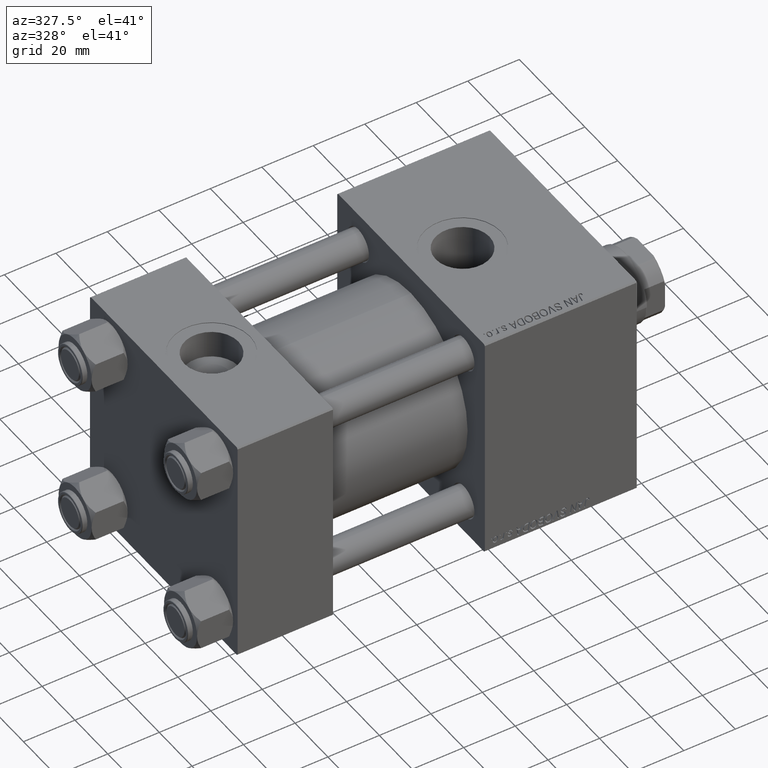
[diagram: clean part render]
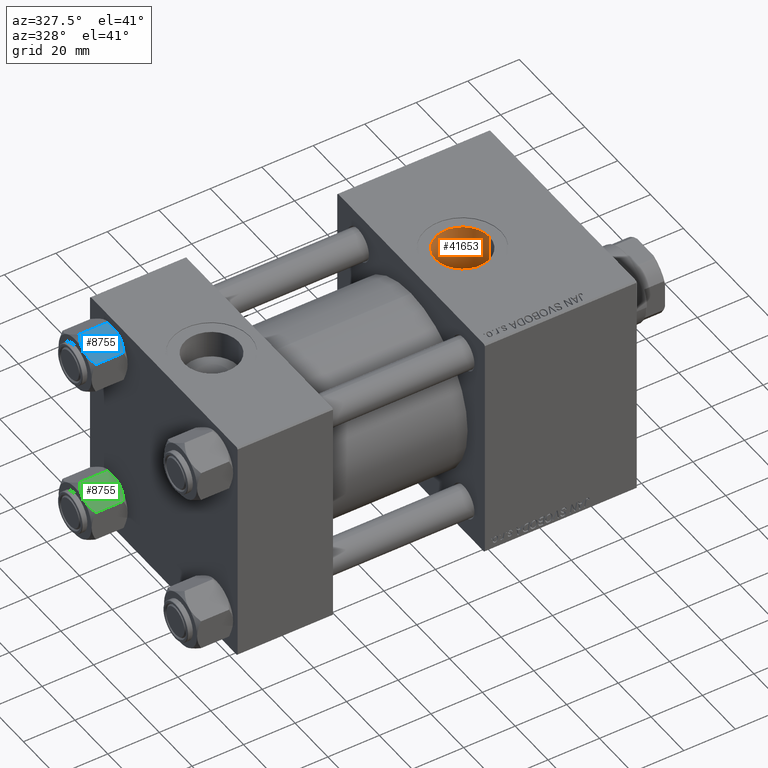
[diagram: same view with three faces highlighted in distinct colors, each labeled with its STEP entity id]
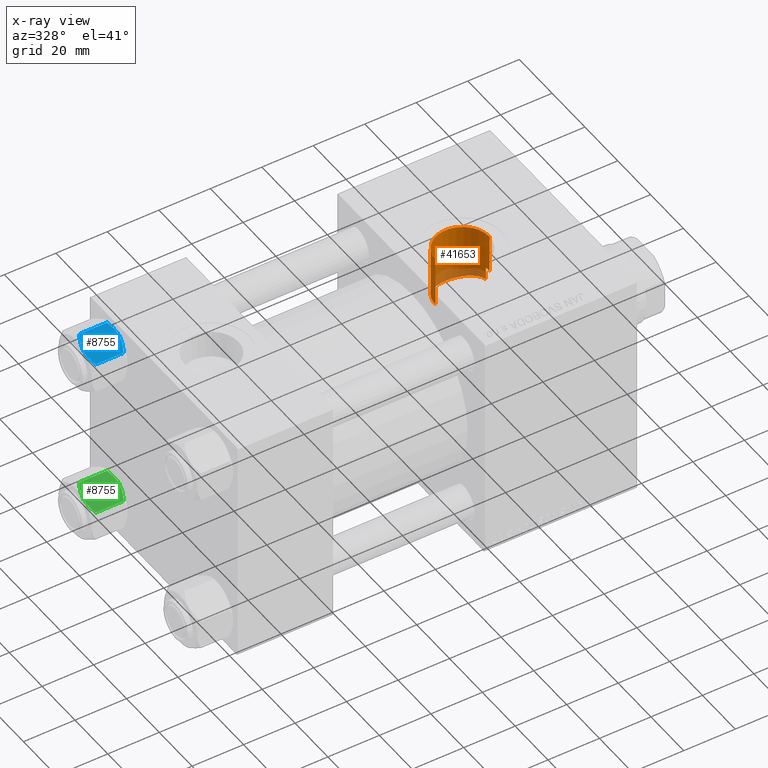
[diagram: x-ray of the same camera — body ghosted, the three highlighted faces saturated]
A machine part, auxiliary view with three faces highlighted in distinct colors.
The next image is the same camera in x-ray (body ghosted, the three faces saturated) — at least one of them is partly hidden behind the body in this view.
Their STEP definitions:

[orange] entity #41653 — the highlighted cylindrical surface (edge-blend (fillet) strip) has radius 10.48 mm, axis along (0, 0, -1).
#37 = CARTESIAN_POINT ( 'NONE',  ( 125.6493108754359298, 4.101772300320491560, 24.66307610818221718 ) ) ;
#168 = EDGE_CURVE ( 'NONE', #49647, #38206, #34773, .T. ) ;
#276 = CARTESIAN_POINT ( 'NONE',  ( 113.7430657101277376, 10.23927097569745648, 22.80705355501167020 ) ) ;
#533 = CARTESIAN_POINT ( 'NONE',  ( 110.2019733445123819, 8.735928194877923048, 23.42469629605734127 ) ) ;
#634 = EDGE_CURVE ( 'NONE', #18854, #1360, #39794, .T. ) ;
#752 = EDGE_CURVE ( 'NONE', #38206, #6247, #3035, .T. ) ;
#789 = CARTESIAN_POINT ( 'NONE',  ( 106.0178759252195277, 3.208328409761893596, 24.79527483265623644 ) ) ;
#1035 = CARTESIAN_POINT ( 'NONE',  ( 120.4188195642436199, 9.508309770353220003, 23.12177175093559001 ) ) ;
#1360 = VERTEX_POINT ( 'NONE', #16520 ) ;
#2262 = DIRECTION ( 'NONE',  ( -0.000000000000000000, -0.000000000000000000, -1.000000000000000000 ) ) ;
#2770 = DIRECTION ( 'NONE',  ( 1.000000000000000000, 0.000000000000000000, 0.000000000000000000 ) ) ;
#3002 = VECTOR ( 'NONE', #34128, 1000.000000000000000 ) ;
#3035 = LINE ( 'NONE', #48986, #46129 ) ;
#3840 = CARTESIAN_POINT ( 'NONE',  ( 122.8367452354718239, 7.949336738018656590, 23.70358087546936332 ) ) ;
#3941 = LINE ( 'NONE', #34410, #44186 ) ;
#4098 = CARTESIAN_POINT ( 'NONE',  ( 107.4454009048542815, 6.087710720132601061, 24.25388776972977567 ) ) ;
#4539 = DIRECTION ( 'NONE',  ( -1.000000000000000000, 0.000000000000000000, 0.000000000000000000 ) ) ;
#6247 = VERTEX_POINT ( 'NONE', #27871 ) ;
#6602 = ORIENTED_EDGE ( 'NONE', *, *, #168, .F. ) ;
#7644 = CARTESIAN_POINT ( 'NONE',  ( 120.1216041761687165, 9.640975358095740688, 23.06660230998516070 ) ) ;
#7896 = CARTESIAN_POINT ( 'NONE',  ( 125.0727601258625157, 5.255426041479307919, 24.44298397004090262 ) ) ;
#8155 = CARTESIAN_POINT ( 'NONE',  ( 125.5190933919545273, 4.395560038025625893, 24.61229465162431040 ) ) ;
#8346 = CYLINDRICAL_SURFACE ( 'NONE', #19235, 10.48000000000000398 ) ;
#8398 = CARTESIAN_POINT ( 'NONE',  ( 105.8381471228398283, 2.583199243602494199, 24.86817457876016491 ) ) ;
#8646 = CARTESIAN_POINT ( 'NONE',  ( 105.5200000000000102, 0.3287850015386533653, 25.00000000000001066 ) ) ;
#11457 = CARTESIAN_POINT ( 'NONE',  ( 109.9349178649771375, 8.552642181762106333, 23.49243050560861690 ) ) ;
#11648 = DIRECTION ( 'NONE',  ( 0.000000000000000000, 0.000000000000000000, -1.000000000000000000 ) ) ;
#11705 = CARTESIAN_POINT ( 'NONE',  ( 113.4226261123151716, 10.16335071941091073, 22.84110205403496252 ) ) ;
#11956 = CARTESIAN_POINT ( 'NONE',  ( 123.3095492883835362, 7.516882943737513756, 23.84424818912263078 ) ) ;
#13908 = ORIENTED_EDGE ( 'NONE', *, *, #32766, .T. ) ;
#13989 = CARTESIAN_POINT ( 'NONE',  ( 105.5199999999999960, 3.061768933645607322E-15, 25.00000000000000000 ) ) ;
#15513 = CARTESIAN_POINT ( 'NONE',  ( 125.9991942442599822, 3.203101616166324828, 24.80136239248102825 ) ) ;
#15759 = CARTESIAN_POINT ( 'NONE',  ( 121.2812565894447232, 9.074845065222547191, 23.29687364020410811 ) ) ;
#16008 = CARTESIAN_POINT ( 'NONE',  ( 106.1232496530287648, 3.519319470400923411, 24.75293856241372836 ) ) ;
#16230 = CARTESIAN_POINT ( 'NONE',  ( 126.4800000000000040, 0.6446704584514654224, 30.00000000000000000 ) ) ;
#16264 = CARTESIAN_POINT ( 'NONE',  ( 117.6386177692833286, 10.37204485282558331, 22.74698456315752182 ) ) ;
#16520 = CARTESIAN_POINT ( 'NONE',  ( 126.2999999999999972, 1.934011375354389939, 24.92507973909010488 ) ) ;
#18011 = DIRECTION ( 'NONE',  ( 0.000000000000000000, 0.000000000000000000, -1.000000000000000000 ) ) ;
#18523 = ORIENTED_EDGE ( 'NONE', *, *, #39733, .T. ) ;
#18825 = ORIENTED_EDGE ( 'NONE', *, *, #634, .T. ) ;
#18854 = VERTEX_POINT ( 'NONE', #13989 ) ;
#19043 = CARTESIAN_POINT ( 'NONE',  ( 126.4800000000000040, 3.352779466116923030E-15, 30.00000000000000000 ) ) ;
#19145 = CARTESIAN_POINT ( 'NONE',  ( 126.2999999999999972, 1.934011375354389939, 67.79999999999999716 ) ) ;
#19235 = AXIS2_PLACEMENT_3D ( 'NONE', #23831, #11648, #4539 ) ;
#19331 = CARTESIAN_POINT ( 'NONE',  ( 123.5346559080208522, 7.291128265817105714, 23.91442154817949728 ) ) ;
#19579 = CARTESIAN_POINT ( 'NONE',  ( 112.4831019260238776, 9.893757827435578633, 22.95979354450773968 ) ) ;
#19825 = CARTESIAN_POINT ( 'NONE',  ( 105.5199999999999960, 3.061768933645607322E-15, 25.00000000000000000 ) ) ;
#20083 = CARTESIAN_POINT ( 'NONE',  ( 105.7631178406935675, 2.267565399210858423, 24.89900277306706755 ) ) ;
#20329 = CARTESIAN_POINT ( 'NONE',  ( 111.0272351189628068, 9.230614084050129620, 23.23401715973118087 ) ) ;
#20963 = ORIENTED_EDGE ( 'NONE', *, *, #752, .F. ) ;
#23135 = CARTESIAN_POINT ( 'NONE',  ( 105.5356230239824953, 0.6585730766822409654, 24.99343936272600430 ) ) ;
#23381 = CARTESIAN_POINT ( 'NONE',  ( 108.6990350769791149, 7.545365073248964549, 23.83920699503248386 ) ) ;
#23831 = CARTESIAN_POINT ( 'NONE',  ( 116.0000000000000000, -6.938893903907227589E-15, 67.79999999999999716 ) ) ;
#23887 = CARTESIAN_POINT ( 'NONE',  ( 111.8851596875121572, 9.659575400900973108, 23.06052388961923683 ) ) ;
#24140 = CARTESIAN_POINT ( 'NONE',  ( 106.4784251406594962, 4.426244458063012921, 24.61265260054171833 ) ) ;
#25037 = EDGE_CURVE ( 'NONE', #27457, #1360, #34368, .T. ) ;
#25458 = EDGE_LOOP ( 'NONE', ( #20963, #6602, #13908, #18825, #48098, #18523 ) ) ;
#26149 = B_SPLINE_CURVE_WITH_KNOTS ( 'NONE', 3,
 ( #35531, #35020, #16230, #19043 ),
 .UNSPECIFIED., .F., .F.,
 ( 4, 4 ),
 ( 0.000000000000000000, 0.001934011375354386698 ),
 .UNSPECIFIED. ) ;
#26958 = CARTESIAN_POINT ( 'NONE',  ( 114.3830684219185798, 10.35963101535786102, 22.75263517047128303 ) ) ;
#27199 = CARTESIAN_POINT ( 'NONE',  ( 119.2095190560418416, 9.981685871371876573, 22.92107120454307534 ) ) ;
#27452 = CARTESIAN_POINT ( 'NONE',  ( 119.5162921391537054, 9.877839664245765761, 22.96616710619939994 ) ) ;
#27457 = VERTEX_POINT ( 'NONE', #37270 ) ;
#27871 = CARTESIAN_POINT ( 'NONE',  ( 126.4800000000000040, 3.352779466116923030E-15, 30.00000000000000000 ) ) ;
#28526 = CARTESIAN_POINT ( 'NONE',  ( 126.4800000000000040, -5.655464058400802100E-15, 44.79999999999999005 ) ) ;
#30769 = CARTESIAN_POINT ( 'NONE',  ( 106.7671663617161357, 4.999617035179606539, 24.50132901008040065 ) ) ;
#31005 = CARTESIAN_POINT ( 'NONE',  ( 126.2999999999999972, 1.934011375354389939, 24.92507973909010488 ) ) ;
#31256 = CARTESIAN_POINT ( 'NONE',  ( 116.3268763252384161, 10.49559595691618874, 22.69024210216181459 ) ) ;
#31509 = CARTESIAN_POINT ( 'NONE',  ( 124.5621068483242055, 6.077585296273588789, 24.25652138941319436 ) ) ;
#32766 = EDGE_CURVE ( 'NONE', #49647, #18854, #3941, .T. ) ;
#33030 = AXIS2_PLACEMENT_3D ( 'NONE', #37559, #2262, #2770 ) ;
#34128 = DIRECTION ( 'NONE',  ( 0.000000000000000000, 0.000000000000000000, -1.000000000000000000 ) ) ;
#34368 = LINE ( 'NONE', #19145, #3002 ) ;
#34410 = CARTESIAN_POINT ( 'NONE',  ( 105.5199999999999960, -6.938893903907227589E-15, 67.79999999999999716 ) ) ;
#34773 = CIRCLE ( 'NONE', #33030, 10.48000000000000398 ) ;
#34810 = CARTESIAN_POINT ( 'NONE',  ( 125.2312790006573948, 4.971677288869586597, 24.50241663594839991 ) ) ;
#34913 = DIRECTION ( 'NONE',  ( 0.000000000000000000, 0.000000000000000000, -1.000000000000000000 ) ) ;
#35020 = CARTESIAN_POINT ( 'NONE',  ( 126.4210485436893237, 1.289340916902927958, 29.97924172559974210 ) ) ;
#35054 = CARTESIAN_POINT ( 'NONE',  ( 110.7478055748506875, 9.074580334331647791, 23.29559678875702744 ) ) ;
#35314 = CARTESIAN_POINT ( 'NONE',  ( 105.6424818341990459, 1.630161534427958081, 24.94884296524732292 ) ) ;
#35531 = CARTESIAN_POINT ( 'NONE',  ( 126.2999999999999972, 1.934011375354389939, 29.93759509379468753 ) ) ;
#35568 = CARTESIAN_POINT ( 'NONE',  ( 115.6733399539854474, 10.49497315035231182, 22.69052503754342354 ) ) ;
#35813 = CARTESIAN_POINT ( 'NONE',  ( 118.2768204000753371, 10.25012929133886352, 22.80291826729093074 ) ) ;
#37270 = CARTESIAN_POINT ( 'NONE',  ( 126.2999999999999972, 1.934011375354389939, 29.93759509379468753 ) ) ;
#37559 = CARTESIAN_POINT ( 'NONE',  ( 116.0000000000000000, -6.938893903907227589E-15, 44.79999999999999005 ) ) ;
#38206 = VERTEX_POINT ( 'NONE', #28526 ) ;
#38624 = CARTESIAN_POINT ( 'NONE',  ( 122.5884970808938448, 8.156264676250790657, 23.63297485160378031 ) ) ;
#38821 = FACE_OUTER_BOUND ( 'NONE', #25458, .T. ) ;
#38876 = CARTESIAN_POINT ( 'NONE',  ( 109.1687481271819706, 7.973357901501731071, 23.69796365038536834 ) ) ;
#39628 = CARTESIAN_POINT ( 'NONE',  ( 107.8384609629549260, 6.604990798069032110, 24.11668345353552212 ) ) ;
#39733 = EDGE_CURVE ( 'NONE', #27457, #6247, #26149, .T. ) ;
#39794 = B_SPLINE_CURVE_WITH_KNOTS ( 'NONE', 3,
 ( #19825, #8646, #23135, #46249, #35314, #20083, #8398, #789, #16008, #24140, #30769, #4098, #39628, #23381, #38876, #11457, #533, #35054, #20329, #23887, #19579, #11705, #276, #26958, #42425, #35568, #31256, #16264, #35813, #27199, #27452, #7644, #1035, #15759, #46736, #38624, #3840, #11956, #19331, #42924, #31509, #7896, #34810, #8155, #37, #15513, #46993, #31005 ),
 .UNSPECIFIED., .F., .F.,
 ( 4, 2, 2, 2, 2, 2, 2, 2, 2, 2, 2, 2, 2, 2, 2, 2, 2, 2, 2, 2, 2, 2, 2, 4 ),
 ( 0.03121016949216451342, 0.03218464452383351659, 0.03315911955550251977, 0.03413359458717152989, 0.03510806961884053307, 0.03705701968217853248, 0.03900596974551652496, 0.04095491980885451744, 0.04192939484052350674, 0.04290386987219248216, 0.04485281993553048852, 0.04582729496719946394, 0.04680176999886843936, 0.04875072006220640408, 0.05069967012554435493, 0.05167414515721335810, 0.05264862018888236128, 0.05459757025222039539, 0.05557204528388942633, 0.05654652031555845726, 0.05849547037889651913, 0.05946994541056553618, 0.06044442044223456711, 0.06239337050557263592 ),
 .UNSPECIFIED. ) ;
#41653 = ADVANCED_FACE ( 'NONE', ( #38821 ), #8346, .F. ) ;
#42425 = CARTESIAN_POINT ( 'NONE',  ( 114.7045387977235436, 10.40468030871039318, 22.73199781475518222 ) ) ;
#42924 = CARTESIAN_POINT ( 'NONE',  ( 124.1771732855569894, 6.585514499373144481, 24.12201144741169401 ) ) ;
#44186 = VECTOR ( 'NONE', #34913, 1000.000000000000000 ) ;
#46129 = VECTOR ( 'NONE', #18011, 1000.000000000000000 ) ;
#46249 = CARTESIAN_POINT ( 'NONE',  ( 105.5968747370656189, 1.308391668130473473, 24.96785615383025814 ) ) ;
#46736 = CARTESIAN_POINT ( 'NONE',  ( 121.8230811921165895, 8.736836638396551891, 23.42725551097151637 ) ) ;
#46993 = CARTESIAN_POINT ( 'NONE',  ( 126.1785022418928435, 2.581074223304206772, 24.87487220027363222 ) ) ;
#48098 = ORIENTED_EDGE ( 'NONE', *, *, #25037, .F. ) ;
#48862 = CARTESIAN_POINT ( 'NONE',  ( 105.5199999999999960, -6.938893903907227589E-15, 44.79999999999999005 ) ) ;
#48986 = CARTESIAN_POINT ( 'NONE',  ( 126.4800000000000040, -5.655464058400801311E-15, 67.79999999999999716 ) ) ;
#49647 = VERTEX_POINT ( 'NONE', #48862 ) ;

[blue] entity #8755 — the highlighted planar face has unit normal (-0, 0.5, -0.866).
#114 = PLANE ( 'NONE',  #21339 ) ;
#385 = CARTESIAN_POINT ( 'NONE',  ( 8.969430103550385169, -4.590921729663315354, -14.00000000000000533 ) ) ;
#707 = CARTESIAN_POINT ( 'NONE',  ( 5.810000000000000497, -10.06321519197517667, -12.44321519197518633 ) ) ;
#3449 = LINE ( 'NONE', #49916, #39969 ) ;
#4533 = EDGE_CURVE ( 'NONE', #35836, #7476, #32222, .T. ) ;
#5192 = CARTESIAN_POINT ( 'NONE',  ( 9.974696630283194310, -2.849749030213795997, -13.69973261901326289 ) ) ;
#6168 = ORIENTED_EDGE ( 'NONE', *, *, #32736, .F. ) ;
#7254 = CARTESIAN_POINT ( 'NONE',  ( 5.810000000000000497, -10.06321519197517667, -1.556784808024811895 ) ) ;
#7476 = VERTEX_POINT ( 'NONE', #27660 ) ;
#8755 = ADVANCED_FACE ( 'NONE', ( #30352 ), #114, .F. ) ;
#9813 = ORIENTED_EDGE ( 'NONE', *, *, #15186, .F. ) ;
#11058 = CARTESIAN_POINT ( 'NONE',  ( 7.700834831386344170, -6.788193195293096061, -0.1903979688073396681 ) ) ;
#11075 = EDGE_CURVE ( 'NONE', #24837, #46367, #3449, .T. ) ;
#11557 = CARTESIAN_POINT ( 'NONE',  ( 8.460569896449618099, -5.472293462311865753, 3.427848222766236415E-15 ) ) ;
#12172 = CARTESIAN_POINT ( 'NONE',  ( 5.810000000000000497, -10.06321519197517667, -14.00000000000000000 ) ) ;
#13059 = CARTESIAN_POINT ( 'NONE',  ( 9.227666995912104042, -4.143642311704127223, -13.96005881939309212 ) ) ;
#15186 = EDGE_CURVE ( 'NONE', #40928, #46367, #40242, .T. ) ;
#15868 = CARTESIAN_POINT ( 'NONE',  ( 11.16445427487471775, -0.7890283410877989567, -12.89876091710046424 ) ) ;
#18165 = ORIENTED_EDGE ( 'NONE', *, *, #33942, .F. ) ;
#18678 = DIRECTION ( 'NONE',  ( -0.8660254037844385966, 0.5000000000000002220, 0.000000000000000000 ) ) ;
#20481 = CARTESIAN_POINT ( 'NONE',  ( 11.62000000000000099, -1.924525737834042474E-15, -1.556784808024813893 ) ) ;
#21339 = AXIS2_PLACEMENT_3D ( 'NONE', #49894, #18678, #22212 ) ;
#22046 = CARTESIAN_POINT ( 'NONE',  ( 9.716999946243698005, -3.296092779912227932, -0.1545239700039822972 ) ) ;
#22212 = DIRECTION ( 'NONE',  ( -0.5000000000000001110, -0.8660254037844384856, 0.000000000000000000 ) ) ;
#22751 = CARTESIAN_POINT ( 'NONE',  ( 7.455303369716807182, -7.213466161761383333, -0.3002673809867365540 ) ) ;
#23437 = EDGE_LOOP ( 'NONE', ( #18165, #39308, #9813, #6168, #24463, #43182 ) ) ;
#24277 = VERTEX_POINT ( 'NONE', #46296 ) ;
#24463 = ORIENTED_EDGE ( 'NONE', *, *, #4533, .F. ) ;
#24492 = CARTESIAN_POINT ( 'NONE',  ( 11.62000000000000099, -1.795242522838921761E-15, -12.44321519197518455 ) ) ;
#24837 = VERTEX_POINT ( 'NONE', #46607 ) ;
#25772 = CARTESIAN_POINT ( 'NONE',  ( 6.733375043383497349, -8.463882702393844326, -13.28854452935655139 ) ) ;
#27376 = CARTESIAN_POINT ( 'NONE',  ( 11.16498164529022574, -0.7881149087337312453, -1.101766453314952487 ) ) ;
#27660 = CARTESIAN_POINT ( 'NONE',  ( 5.810000000000000497, -10.06321519197517667, -1.556784808024811895 ) ) ;
#27668 = DIRECTION ( 'NONE',  ( -0.000000000000000000, -0.000000000000000000, 1.000000000000000000 ) ) ;
#30352 = FACE_OUTER_BOUND ( 'NONE', #23437, .T. ) ;
#30866 = DIRECTION ( 'NONE',  ( -0.000000000000000000, -0.000000000000000000, 1.000000000000000000 ) ) ;
#31369 = CARTESIAN_POINT ( 'NONE',  ( 8.715000000000001634, -5.031607595987590997, -14.00000000000000000 ) ) ;
#32222 = LINE ( 'NONE', #12172, #32622 ) ;
#32622 = VECTOR ( 'NONE', #27668, 1000.000000000000000 ) ;
#32736 = EDGE_CURVE ( 'NONE', #7476, #40928, #33800, .T. ) ;
#33473 = CARTESIAN_POINT ( 'NONE',  ( 8.715000000000003411, -5.031607595987592774, 0.000000000000000000 ) ) ;
#33636 = CARTESIAN_POINT ( 'NONE',  ( 5.810000000000000497, -10.06321519197517667, -12.44321519197518633 ) ) ;
#33800 = B_SPLINE_CURVE_WITH_KNOTS ( 'NONE', 3,
 ( #7254, #42033, #45848, #22751, #11058, #38243, #11557, #38726 ),
 .UNSPECIFIED., .F., .F.,
 ( 4, 2, 2, 4 ),
 ( 2.544312114902182352E-07, 0.003011550106433539056, 0.004517197944044561847, 0.006022845781655586372 ),
 .UNSPECIFIED. ) ;
#33942 = EDGE_CURVE ( 'NONE', #24837, #24277, #35063, .T. ) ;
#33987 = CARTESIAN_POINT ( 'NONE',  ( 9.220295946303432189, -4.156409344131454020, 3.521962994683380021E-15 ) ) ;
#35063 = B_SPLINE_CURVE_WITH_KNOTS ( 'NONE', 3,
 ( #24492, #15868, #39974, #5192, #35165, #13059, #385, #31369 ),
 .UNSPECIFIED., .F., .F.,
 ( 4, 2, 2, 4 ),
 ( 2.544312114905217906E-07, 0.003011550106433539490, 0.004517197944044564449, 0.006022845781655588975 ),
 .UNSPECIFIED. ) ;
#35165 = CARTESIAN_POINT ( 'NONE',  ( 9.729165168613654657, -3.275021996682085490, -13.80960203119266083 ) ) ;
#35836 = VERTEX_POINT ( 'NONE', #707 ) ;
#37541 = CARTESIAN_POINT ( 'NONE',  ( 10.69662495661650503, -1.599332489581334560, -0.7114554706434483844 ) ) ;
#37969 = CARTESIAN_POINT ( 'NONE',  ( 7.713000053756304375, -6.767122412062953174, -13.84547602999601601 ) ) ;
#38243 = CARTESIAN_POINT ( 'NONE',  ( 8.202333004087897450, -5.919572880271052995, -0.03994118060690592109 ) ) ;
#38726 = CARTESIAN_POINT ( 'NONE',  ( 8.715000000000003411, -5.031607595987592774, 0.000000000000000000 ) ) ;
#39308 = ORIENTED_EDGE ( 'NONE', *, *, #11075, .T. ) ;
#39969 = VECTOR ( 'NONE', #30866, 1000.000000000000000 ) ;
#39974 = CARTESIAN_POINT ( 'NONE',  ( 10.69859855102500745, -1.595914123792264050, -13.28585617404753094 ) ) ;
#40242 = B_SPLINE_CURVE_WITH_KNOTS ( 'NONE', 3,
 ( #33473, #33987, #22046, #37541, #27376, #46655 ),
 .UNSPECIFIED., .F., .F.,
 ( 4, 2, 4 ),
 ( 0.006022845781655586372, 0.009013049135303633289, 0.01200325248895168020 ),
 .UNSPECIFIED. ) ;
#40928 = VERTEX_POINT ( 'NONE', #49370 ) ;
#41255 = CARTESIAN_POINT ( 'NONE',  ( 6.265018354709775750, -9.275100283241444643, -12.89823354668504507 ) ) ;
#42033 = CARTESIAN_POINT ( 'NONE',  ( 6.265545725125285514, -9.274186850887382150, -1.101239082899530430 ) ) ;
#42751 = EDGE_CURVE ( 'NONE', #24277, #35836, #44063, .T. ) ;
#43182 = ORIENTED_EDGE ( 'NONE', *, *, #42751, .F. ) ;
#44063 = B_SPLINE_CURVE_WITH_KNOTS ( 'NONE', 3,
 ( #49128, #45051, #37969, #25772, #41255, #33636 ),
 .UNSPECIFIED., .F., .F.,
 ( 4, 2, 4 ),
 ( 0.006022845781655588975, 0.009013049135303635023, 0.01200325248895167674 ),
 .UNSPECIFIED. ) ;
#45051 = CARTESIAN_POINT ( 'NONE',  ( 8.209704053696569304, -5.906805847843729751, -14.00000000000000711 ) ) ;
#45848 = CARTESIAN_POINT ( 'NONE',  ( 6.731401448974991375, -8.467301068182914392, -0.7141438259524641730 ) ) ;
#46296 = CARTESIAN_POINT ( 'NONE',  ( 8.715000000000001634, -5.031607595987590997, -14.00000000000000000 ) ) ;
#46367 = VERTEX_POINT ( 'NONE', #20481 ) ;
#46607 = CARTESIAN_POINT ( 'NONE',  ( 11.62000000000000099, -1.795242522838921761E-15, -12.44321519197518455 ) ) ;
#46655 = CARTESIAN_POINT ( 'NONE',  ( 11.62000000000000099, -1.924525737834042474E-15, -1.556784808024813893 ) ) ;
#49128 = CARTESIAN_POINT ( 'NONE',  ( 8.715000000000001634, -5.031607595987590997, -14.00000000000000000 ) ) ;
#49370 = CARTESIAN_POINT ( 'NONE',  ( 8.715000000000003411, -5.031607595987592774, 0.000000000000000000 ) ) ;
#49894 = CARTESIAN_POINT ( 'NONE',  ( 11.62000000000000099, -1.813166800014576593E-15, -14.00000000000000000 ) ) ;
#49916 = CARTESIAN_POINT ( 'NONE',  ( 11.62000000000000099, -1.813166800014576593E-15, -14.00000000000000000 ) ) ;

[green] entity #8755 — the highlighted planar face has unit normal (-0, 0.5, -0.866).
#114 = PLANE ( 'NONE',  #21339 ) ;
#385 = CARTESIAN_POINT ( 'NONE',  ( 8.969430103550385169, -4.590921729663315354, -14.00000000000000533 ) ) ;
#707 = CARTESIAN_POINT ( 'NONE',  ( 5.810000000000000497, -10.06321519197517667, -12.44321519197518633 ) ) ;
#3449 = LINE ( 'NONE', #49916, #39969 ) ;
#4533 = EDGE_CURVE ( 'NONE', #35836, #7476, #32222, .T. ) ;
#5192 = CARTESIAN_POINT ( 'NONE',  ( 9.974696630283194310, -2.849749030213795997, -13.69973261901326289 ) ) ;
#6168 = ORIENTED_EDGE ( 'NONE', *, *, #32736, .F. ) ;
#7254 = CARTESIAN_POINT ( 'NONE',  ( 5.810000000000000497, -10.06321519197517667, -1.556784808024811895 ) ) ;
#7476 = VERTEX_POINT ( 'NONE', #27660 ) ;
#8755 = ADVANCED_FACE ( 'NONE', ( #30352 ), #114, .F. ) ;
#9813 = ORIENTED_EDGE ( 'NONE', *, *, #15186, .F. ) ;
#11058 = CARTESIAN_POINT ( 'NONE',  ( 7.700834831386344170, -6.788193195293096061, -0.1903979688073396681 ) ) ;
#11075 = EDGE_CURVE ( 'NONE', #24837, #46367, #3449, .T. ) ;
#11557 = CARTESIAN_POINT ( 'NONE',  ( 8.460569896449618099, -5.472293462311865753, 3.427848222766236415E-15 ) ) ;
#12172 = CARTESIAN_POINT ( 'NONE',  ( 5.810000000000000497, -10.06321519197517667, -14.00000000000000000 ) ) ;
#13059 = CARTESIAN_POINT ( 'NONE',  ( 9.227666995912104042, -4.143642311704127223, -13.96005881939309212 ) ) ;
#15186 = EDGE_CURVE ( 'NONE', #40928, #46367, #40242, .T. ) ;
#15868 = CARTESIAN_POINT ( 'NONE',  ( 11.16445427487471775, -0.7890283410877989567, -12.89876091710046424 ) ) ;
#18165 = ORIENTED_EDGE ( 'NONE', *, *, #33942, .F. ) ;
#18678 = DIRECTION ( 'NONE',  ( -0.8660254037844385966, 0.5000000000000002220, 0.000000000000000000 ) ) ;
#20481 = CARTESIAN_POINT ( 'NONE',  ( 11.62000000000000099, -1.924525737834042474E-15, -1.556784808024813893 ) ) ;
#21339 = AXIS2_PLACEMENT_3D ( 'NONE', #49894, #18678, #22212 ) ;
#22046 = CARTESIAN_POINT ( 'NONE',  ( 9.716999946243698005, -3.296092779912227932, -0.1545239700039822972 ) ) ;
#22212 = DIRECTION ( 'NONE',  ( -0.5000000000000001110, -0.8660254037844384856, 0.000000000000000000 ) ) ;
#22751 = CARTESIAN_POINT ( 'NONE',  ( 7.455303369716807182, -7.213466161761383333, -0.3002673809867365540 ) ) ;
#23437 = EDGE_LOOP ( 'NONE', ( #18165, #39308, #9813, #6168, #24463, #43182 ) ) ;
#24277 = VERTEX_POINT ( 'NONE', #46296 ) ;
#24463 = ORIENTED_EDGE ( 'NONE', *, *, #4533, .F. ) ;
#24492 = CARTESIAN_POINT ( 'NONE',  ( 11.62000000000000099, -1.795242522838921761E-15, -12.44321519197518455 ) ) ;
#24837 = VERTEX_POINT ( 'NONE', #46607 ) ;
#25772 = CARTESIAN_POINT ( 'NONE',  ( 6.733375043383497349, -8.463882702393844326, -13.28854452935655139 ) ) ;
#27376 = CARTESIAN_POINT ( 'NONE',  ( 11.16498164529022574, -0.7881149087337312453, -1.101766453314952487 ) ) ;
#27660 = CARTESIAN_POINT ( 'NONE',  ( 5.810000000000000497, -10.06321519197517667, -1.556784808024811895 ) ) ;
#27668 = DIRECTION ( 'NONE',  ( -0.000000000000000000, -0.000000000000000000, 1.000000000000000000 ) ) ;
#30352 = FACE_OUTER_BOUND ( 'NONE', #23437, .T. ) ;
#30866 = DIRECTION ( 'NONE',  ( -0.000000000000000000, -0.000000000000000000, 1.000000000000000000 ) ) ;
#31369 = CARTESIAN_POINT ( 'NONE',  ( 8.715000000000001634, -5.031607595987590997, -14.00000000000000000 ) ) ;
#32222 = LINE ( 'NONE', #12172, #32622 ) ;
#32622 = VECTOR ( 'NONE', #27668, 1000.000000000000000 ) ;
#32736 = EDGE_CURVE ( 'NONE', #7476, #40928, #33800, .T. ) ;
#33473 = CARTESIAN_POINT ( 'NONE',  ( 8.715000000000003411, -5.031607595987592774, 0.000000000000000000 ) ) ;
#33636 = CARTESIAN_POINT ( 'NONE',  ( 5.810000000000000497, -10.06321519197517667, -12.44321519197518633 ) ) ;
#33800 = B_SPLINE_CURVE_WITH_KNOTS ( 'NONE', 3,
 ( #7254, #42033, #45848, #22751, #11058, #38243, #11557, #38726 ),
 .UNSPECIFIED., .F., .F.,
 ( 4, 2, 2, 4 ),
 ( 2.544312114902182352E-07, 0.003011550106433539056, 0.004517197944044561847, 0.006022845781655586372 ),
 .UNSPECIFIED. ) ;
#33942 = EDGE_CURVE ( 'NONE', #24837, #24277, #35063, .T. ) ;
#33987 = CARTESIAN_POINT ( 'NONE',  ( 9.220295946303432189, -4.156409344131454020, 3.521962994683380021E-15 ) ) ;
#35063 = B_SPLINE_CURVE_WITH_KNOTS ( 'NONE', 3,
 ( #24492, #15868, #39974, #5192, #35165, #13059, #385, #31369 ),
 .UNSPECIFIED., .F., .F.,
 ( 4, 2, 2, 4 ),
 ( 2.544312114905217906E-07, 0.003011550106433539490, 0.004517197944044564449, 0.006022845781655588975 ),
 .UNSPECIFIED. ) ;
#35165 = CARTESIAN_POINT ( 'NONE',  ( 9.729165168613654657, -3.275021996682085490, -13.80960203119266083 ) ) ;
#35836 = VERTEX_POINT ( 'NONE', #707 ) ;
#37541 = CARTESIAN_POINT ( 'NONE',  ( 10.69662495661650503, -1.599332489581334560, -0.7114554706434483844 ) ) ;
#37969 = CARTESIAN_POINT ( 'NONE',  ( 7.713000053756304375, -6.767122412062953174, -13.84547602999601601 ) ) ;
#38243 = CARTESIAN_POINT ( 'NONE',  ( 8.202333004087897450, -5.919572880271052995, -0.03994118060690592109 ) ) ;
#38726 = CARTESIAN_POINT ( 'NONE',  ( 8.715000000000003411, -5.031607595987592774, 0.000000000000000000 ) ) ;
#39308 = ORIENTED_EDGE ( 'NONE', *, *, #11075, .T. ) ;
#39969 = VECTOR ( 'NONE', #30866, 1000.000000000000000 ) ;
#39974 = CARTESIAN_POINT ( 'NONE',  ( 10.69859855102500745, -1.595914123792264050, -13.28585617404753094 ) ) ;
#40242 = B_SPLINE_CURVE_WITH_KNOTS ( 'NONE', 3,
 ( #33473, #33987, #22046, #37541, #27376, #46655 ),
 .UNSPECIFIED., .F., .F.,
 ( 4, 2, 4 ),
 ( 0.006022845781655586372, 0.009013049135303633289, 0.01200325248895168020 ),
 .UNSPECIFIED. ) ;
#40928 = VERTEX_POINT ( 'NONE', #49370 ) ;
#41255 = CARTESIAN_POINT ( 'NONE',  ( 6.265018354709775750, -9.275100283241444643, -12.89823354668504507 ) ) ;
#42033 = CARTESIAN_POINT ( 'NONE',  ( 6.265545725125285514, -9.274186850887382150, -1.101239082899530430 ) ) ;
#42751 = EDGE_CURVE ( 'NONE', #24277, #35836, #44063, .T. ) ;
#43182 = ORIENTED_EDGE ( 'NONE', *, *, #42751, .F. ) ;
#44063 = B_SPLINE_CURVE_WITH_KNOTS ( 'NONE', 3,
 ( #49128, #45051, #37969, #25772, #41255, #33636 ),
 .UNSPECIFIED., .F., .F.,
 ( 4, 2, 4 ),
 ( 0.006022845781655588975, 0.009013049135303635023, 0.01200325248895167674 ),
 .UNSPECIFIED. ) ;
#45051 = CARTESIAN_POINT ( 'NONE',  ( 8.209704053696569304, -5.906805847843729751, -14.00000000000000711 ) ) ;
#45848 = CARTESIAN_POINT ( 'NONE',  ( 6.731401448974991375, -8.467301068182914392, -0.7141438259524641730 ) ) ;
#46296 = CARTESIAN_POINT ( 'NONE',  ( 8.715000000000001634, -5.031607595987590997, -14.00000000000000000 ) ) ;
#46367 = VERTEX_POINT ( 'NONE', #20481 ) ;
#46607 = CARTESIAN_POINT ( 'NONE',  ( 11.62000000000000099, -1.795242522838921761E-15, -12.44321519197518455 ) ) ;
#46655 = CARTESIAN_POINT ( 'NONE',  ( 11.62000000000000099, -1.924525737834042474E-15, -1.556784808024813893 ) ) ;
#49128 = CARTESIAN_POINT ( 'NONE',  ( 8.715000000000001634, -5.031607595987590997, -14.00000000000000000 ) ) ;
#49370 = CARTESIAN_POINT ( 'NONE',  ( 8.715000000000003411, -5.031607595987592774, 0.000000000000000000 ) ) ;
#49894 = CARTESIAN_POINT ( 'NONE',  ( 11.62000000000000099, -1.813166800014576593E-15, -14.00000000000000000 ) ) ;
#49916 = CARTESIAN_POINT ( 'NONE',  ( 11.62000000000000099, -1.813166800014576593E-15, -14.00000000000000000 ) ) ;